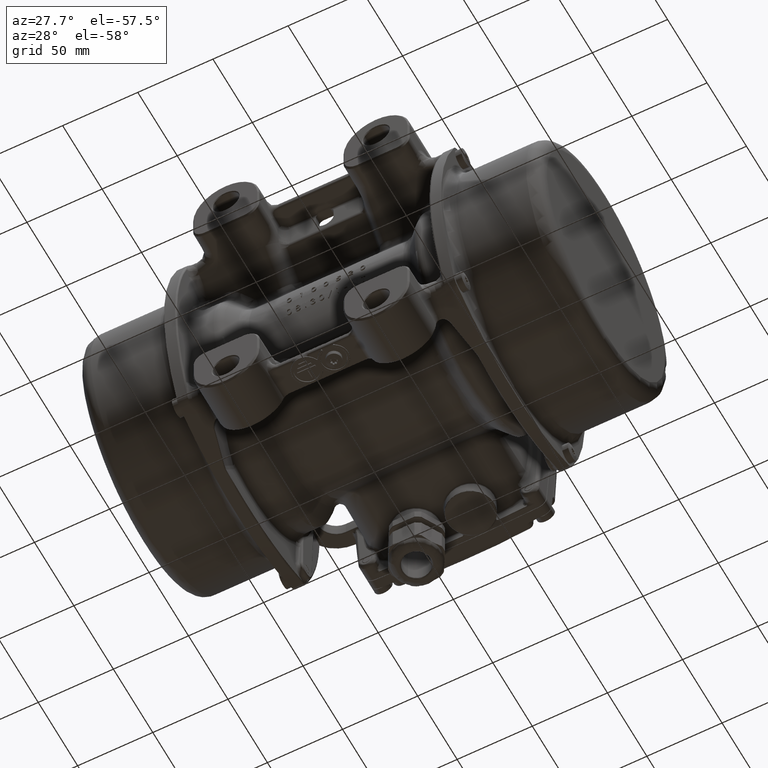
[diagram: clean part render]
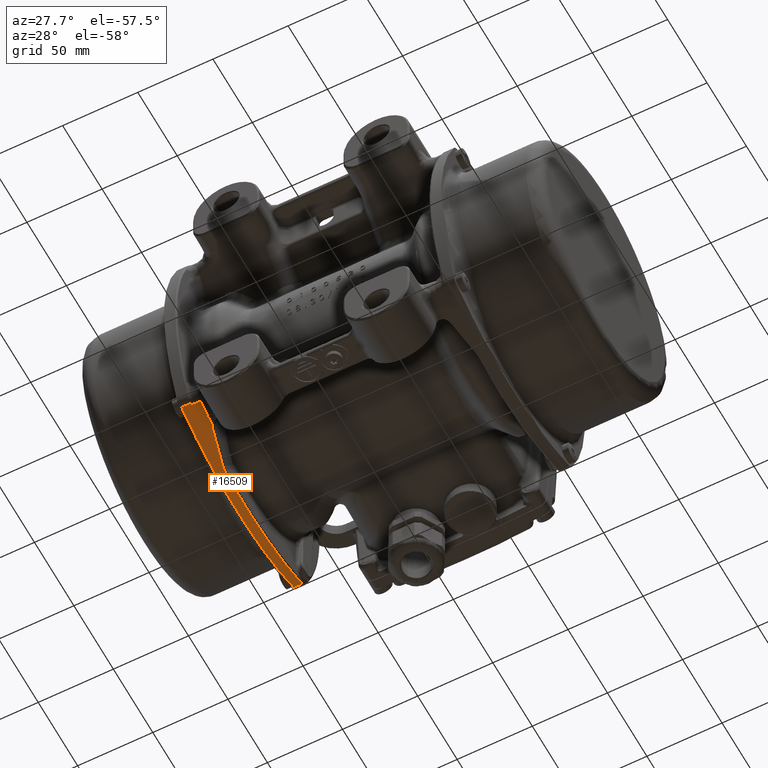
[diagram: same view with one face highlighted and labeled with its STEP entity id]
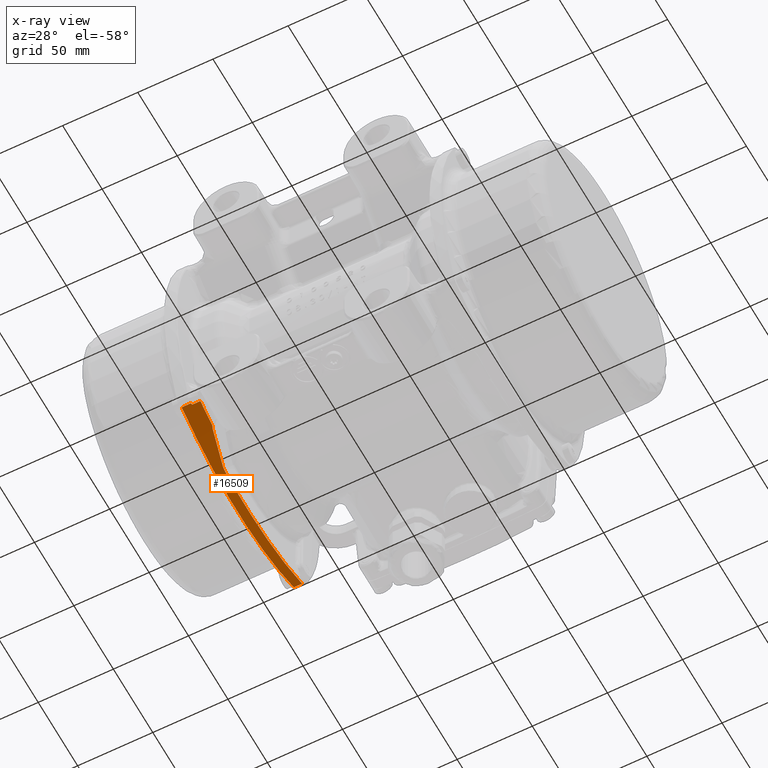
[diagram: x-ray of the same camera — body ghosted, the highlighted face saturated]
A machine part, auxiliary view. The second image highlights one B-rep face of the part: STEP entity #16509.
The next image is the same camera in x-ray: the body ghosted, the highlighted face saturated — about 0% of this face is hidden behind the body in this view.
In plain terms, the highlighted cylindrical surface (partial cylindrical patch) has radius 163 mm, axis along (1, 0, 0).
Its self-contained STEP definition (entity closure, byte-faithful):
#1179 = CARTESIAN_POINT ( 'NONE',  ( -84.95622365670847400, 1.664559258779139600, -91.05815852646271900 ) ) ;
#1405 = DIRECTION ( 'NONE',  ( -1.000000000000000000, 0.0000000000000000000, 0.0000000000000000000 ) ) ;
#1544 = EDGE_CURVE ( 'NONE', #92288, #127530, #82545, .T. ) ;
#5457 = EDGE_CURVE ( 'NONE', #92288, #8574, #68209, .T. ) ;
#6122 = AXIS2_PLACEMENT_3D ( 'NONE', #84977, #139293, #17873 ) ;
#7042 = VERTEX_POINT ( 'NONE', #85065 ) ;
#8574 = VERTEX_POINT ( 'NONE', #83691 ) ;
#10276 = CARTESIAN_POINT ( 'NONE',  ( -85.05358858076387200, 31.19137921331264000, -88.22498620659658300 ) ) ;
#11708 = CARTESIAN_POINT ( 'NONE',  ( -84.97921079013436000, 14.33698579958123900, -90.39429363348564600 ) ) ;
#12398 = CARTESIAN_POINT ( 'NONE',  ( -81.48506677218058800, -45.65122559838616200, -84.68089224057997900 ) ) ;
#13397 = EDGE_CURVE ( 'NONE', #7042, #128680, #109276, .T. ) ;
#13398 = CARTESIAN_POINT ( 'NONE',  ( -91.00000000000000000, 1.792729326835795000E-023, 71.98787847279119500 ) ) ;
#15346 = CARTESIAN_POINT ( 'NONE',  ( -85.03981301421490000, -27.79474097266059800, -88.62486191309069700 ) ) ;
#16509 = ADVANCED_FACE ( 'NONE', ( #33911 ), #20033, .T. ) ;
#17873 = DIRECTION ( 'NONE',  ( 0.0000000000000000000, 0.0000000000000000000, -1.000000000000000000 ) ) ;
#17956 = CARTESIAN_POINT ( 'NONE',  ( -78.89318181003810100, -55.14786342736459100, -81.39958242084489400 ) ) ;
#19954 = CARTESIAN_POINT ( 'NONE',  ( -84.51364399271601300, -70.04470885504979100, -75.19479293050719100 ) ) ;
#20012 = CARTESIAN_POINT ( 'NONE',  ( -84.51364399271601300, -70.04470885504979100, -75.19479293050719100 ) ) ;
#20033 = CYLINDRICAL_SURFACE ( 'NONE', #6122, 163.0000000000000000 ) ;
#21427 = CARTESIAN_POINT ( 'NONE',  ( -84.91226995062560000, -71.01404842834180900, -74.72955377647200200 ) ) ;
#21679 = CARTESIAN_POINT ( 'NONE',  ( -85.48723200359769700, 71.01404973767999700, -74.72955314272719800 ) ) ;
#22376 = ORIENTED_EDGE ( 'NONE', *, *, #35187, .T. ) ;
#23339 = CARTESIAN_POINT ( 'NONE',  ( -83.16227077923406300, -38.15653777660978100, -86.67281842589184700 ) ) ;
#25711 = B_SPLINE_CURVE_WITH_KNOTS ( 'NONE', 3,
 ( #69383, #136033, #80311, #26093 ),
 .UNSPECIFIED., .F., .F.,
 ( 4, 4 ),
 ( 0.0000000000000000000, 0.002444839378856242700 ),
 .UNSPECIFIED. ) ;
#26093 = CARTESIAN_POINT ( 'NONE',  ( -78.89318181003810100, -55.14786342736459100, -81.39958242084489400 ) ) ;
#26136 = CARTESIAN_POINT ( 'NONE',  ( -84.76522260799039500, -30.53898323122515300, -88.12573900930479500 ) ) ;
#28691 = LINE ( 'NONE', #116977, #47356 ) ;
#30372 = EDGE_CURVE ( 'NONE', #105200, #126795, #99846, .T. ) ;
#31036 = CARTESIAN_POINT ( 'NONE',  ( -79.00000000000000000, -61.37645135133379900, -79.01520500406159900 ) ) ;
#33823 = ORIENTED_EDGE ( 'NONE', *, *, #13397, .T. ) ;
#33889 = CARTESIAN_POINT ( 'NONE',  ( -84.76522260799039500, -30.53898323122515300, -88.12573900930479500 ) ) ;
#33911 = FACE_OUTER_BOUND ( 'NONE', #63044, .T. ) ;
#34545 = EDGE_CURVE ( 'NONE', #126795, #54433, #119964, .T. ) ;
#35187 = EDGE_CURVE ( 'NONE', #54433, #133224, #25711, .T. ) ;
#35426 = CARTESIAN_POINT ( 'NONE',  ( -84.95540459665196000, -29.63519957023809300, -88.29812056248921700 ) ) ;
#40563 = AXIS2_PLACEMENT_3D ( 'NONE', #13398, #89071, #112433 ) ;
#45646 = ORIENTED_EDGE ( 'NONE', *, *, #34545, .T. ) ;
#47356 = VECTOR ( 'NONE', #138794, 1000.000000000000000 ) ;
#47833 = VECTOR ( 'NONE', #60059, 1000.000000000000000 ) ;
#52330 = CARTESIAN_POINT ( 'NONE',  ( -91.00000000000000000, -71.01404842834180900, -74.72955377647200200 ) ) ;
#54433 = VERTEX_POINT ( 'NONE', #121991 ) ;
#54488 = CARTESIAN_POINT ( 'NONE',  ( -85.11556374661380200, 39.41058288379145600, -86.39900207664236100 ) ) ;
#54959 = CARTESIAN_POINT ( 'NONE',  ( -84.99399469158468900, 18.56685279070377700, -89.96517323423360300 ) ) ;
#55903 = CARTESIAN_POINT ( 'NONE',  ( -84.95961069827305300, 5.885286579069793700, -90.96084151704330600 ) ) ;
#56582 = CARTESIAN_POINT ( 'NONE',  ( -79.00000000000000000, 1.792729326835795000E-023, 71.98787847279119500 ) ) ;
#56623 = ORIENTED_EDGE ( 'NONE', *, *, #5457, .F. ) ;
#56758 = CARTESIAN_POINT ( 'NONE',  ( -85.04525813113102100, -28.72031924801059000, -88.46468652257394200 ) ) ;
#60059 = DIRECTION ( 'NONE',  ( 1.000000000000000000, 0.0000000000000000000, 0.0000000000000000000 ) ) ;
#60831 = CARTESIAN_POINT ( 'NONE',  ( -101.5000000000000000, -70.04470885504979100, -75.19479293050719100 ) ) ;
#63044 = EDGE_LOOP ( 'NONE', ( #56623, #78283, #129853, #89924, #80923, #45646, #22376, #127449, #63344, #33823, #80032 ) ) ;
#63344 = ORIENTED_EDGE ( 'NONE', *, *, #72878, .T. ) ;
#65038 = CARTESIAN_POINT ( 'NONE',  ( -85.03981301421490000, -27.79474097266059800, -88.62486191309069700 ) ) ;
#65236 = CARTESIAN_POINT ( 'NONE',  ( -84.78570494465051900, -70.68934162004858000, -74.88671809331999900 ) ) ;
#65966 = CARTESIAN_POINT ( 'NONE',  ( -85.00282291425854500, 20.68424360165078500, -89.70833693051641000 ) ) ;
#68209 = LINE ( 'NONE', #125389, #47833 ) ;
#68842 = CARTESIAN_POINT ( 'NONE',  ( -85.48723200359769700, 71.01404973767999700, -74.72955314272719800 ) ) ;
#69383 = CARTESIAN_POINT ( 'NONE',  ( -79.74213417574100000, -52.98495852258109600, -82.16008346754840400 ) ) ;
#69838 = VERTEX_POINT ( 'NONE', #31036 ) ;
#72878 = EDGE_CURVE ( 'NONE', #69838, #7042, #95539, .T. ) ;
#74135 = CARTESIAN_POINT ( 'NONE',  ( -78.96068239280941700, -57.23940463725277500, -80.64760420617450600 ) ) ;
#75480 = CARTESIAN_POINT ( 'NONE',  ( -85.37370443854364100, 63.34494570487331100, -78.44154652505665100 ) ) ;
#78056 = CARTESIAN_POINT ( 'NONE',  ( -79.74213417574100000, -52.98495852258109600, -82.16008346754840400 ) ) ;
#78283 = ORIENTED_EDGE ( 'NONE', *, *, #1544, .T. ) ;
#78840 = EDGE_CURVE ( 'NONE', #127530, #110468, #28691, .T. ) ;
#80032 = ORIENTED_EDGE ( 'NONE', *, *, #123176, .T. ) ;
#80311 = CARTESIAN_POINT ( 'NONE',  ( -79.27780754179765700, -54.46409556670649000, -81.64541957321645800 ) ) ;
#80811 = DIRECTION ( 'NONE',  ( -1.000000000000000000, -0.0000000000000000000, -0.0000000000000000000 ) ) ;
#80923 = ORIENTED_EDGE ( 'NONE', *, *, #30372, .T. ) ;
#82545 = CIRCLE ( 'NONE', #40563, 163.0000000000000000 ) ;
#83621 = CARTESIAN_POINT ( 'NONE',  ( -79.00000000000000000, -61.37645135133379900, -79.01520500406159900 ) ) ;
#83691 = CARTESIAN_POINT ( 'NONE',  ( -84.91226995062560000, -71.01404842834180900, -74.72955377647200200 ) ) ;
#84528 = EDGE_CURVE ( 'NONE', #133224, #69838, #123253, .T. ) ;
#84977 = CARTESIAN_POINT ( 'NONE',  ( -101.5000000000000000, 1.792729326835795000E-023, 71.98787847279119500 ) ) ;
#85065 = CARTESIAN_POINT ( 'NONE',  ( -79.00000000000000000, -70.04470885504969100, -75.19479293050730500 ) ) ;
#86878 = CARTESIAN_POINT ( 'NONE',  ( -84.97324240460692100, 12.22320642598969300, -90.56695446298613200 ) ) ;
#88239 = EDGE_CURVE ( 'NONE', #110468, #105200, #109173, .T. ) ;
#89071 = DIRECTION ( 'NONE',  ( 1.000000000000000000, -0.0000000000000000000, -0.0000000000000000000 ) ) ;
#89924 = ORIENTED_EDGE ( 'NONE', *, *, #88239, .T. ) ;
#92288 = VERTEX_POINT ( 'NONE', #52330 ) ;
#93910 = AXIS2_PLACEMENT_3D ( 'NONE', #56582, #1405, #132359 ) ;
#95539 = CIRCLE ( 'NONE', #93910, 163.0000000000000000 ) ;
#97339 = VECTOR ( 'NONE', #80811, 1000.000000000000000 ) ;
#99239 = CARTESIAN_POINT ( 'NONE',  ( -84.96309493681141600, -10.98412571340352700, -90.86012654128451500 ) ) ;
#99846 = B_SPLINE_CURVE_WITH_KNOTS ( 'NONE', 3,
 ( #100090, #56758, #35426, #123052 ),
 .UNSPECIFIED., .F., .F.,
 ( 4, 4 ),
 ( 0.0000000000000000000, 0.002802746713130831800 ),
 .UNSPECIFIED. ) ;
#100090 = CARTESIAN_POINT ( 'NONE',  ( -85.03981301421490000, -27.79474097266059800, -88.62486191309069700 ) ) ;
#101799 = B_SPLINE_CURVE_WITH_KNOTS ( 'NONE', 3,
 ( #20012, #141389, #65236, #21427 ),
 .UNSPECIFIED., .F., .F.,
 ( 4, 4 ),
 ( -1.721656244367709100E-005, 0.001129505523171453900 ),
 .UNSPECIFIED. ) ;
#102309 = CARTESIAN_POINT ( 'NONE',  ( -91.00000000000000000, 71.01404973767999700, -74.72955314272719800 ) ) ;
#105200 = VERTEX_POINT ( 'NONE', #15346 ) ;
#109173 = B_SPLINE_CURVE_WITH_KNOTS ( 'NONE', 3,
 ( #21679, #75480, #109787, #54488, #10276, #65966, #54959, #11708, #86878, #55903, #1179, #99239, #110261, #65038 ),
 .UNSPECIFIED., .F., .F.,
 ( 4, 2, 2, 2, 2, 2, 4 ),
 ( 0.0000000000000000000, 0.02520616277970655400, 0.05041232555941310700, 0.05671386625433974500, 0.06301540694926639800, 0.07561848833911970200, 0.1008246511188263000 ),
 .UNSPECIFIED. ) ;
#109276 = LINE ( 'NONE', #60831, #97339 ) ;
#109787 = CARTESIAN_POINT ( 'NONE',  ( -85.27564181875418100, 55.48735377343631800, -81.50724048752705600 ) ) ;
#110261 = CARTESIAN_POINT ( 'NONE',  ( -84.99041947427090800, -19.39867010478594300, -90.07783889611211200 ) ) ;
#110468 = VERTEX_POINT ( 'NONE', #68842 ) ;
#112433 = DIRECTION ( 'NONE',  ( 0.0000000000000000000, 1.776356839400250500E-015, 1.000000000000000000 ) ) ;
#116977 = CARTESIAN_POINT ( 'NONE',  ( -101.5000000000000000, 71.01404973767999700, -74.72955314272719800 ) ) ;
#119964 =( BOUNDED_CURVE ( )  B_SPLINE_CURVE ( 3, ( #33889, #23339, #12398, #78056 ),
 .UNSPECIFIED., .F., .T. ) 
 B_SPLINE_CURVE_WITH_KNOTS ( ( 4, 4 ),
 ( 4.111211970336015000, 4.253818792758105300 ),
 .UNSPECIFIED. ) 
 CURVE ( )  GEOMETRIC_REPRESENTATION_ITEM ( )  RATIONAL_B_SPLINE_CURVE ( ( 1.000000000000000000, 0.9983059924184980400, 0.9983059924184980400, 1.000000000000000000 ) ) 
 REPRESENTATION_ITEM ( '' )  );
#121986 = CARTESIAN_POINT ( 'NONE',  ( -78.89318181003810100, -55.14786342736459100, -81.39958242084489400 ) ) ;
#121991 = CARTESIAN_POINT ( 'NONE',  ( -79.74213417574100000, -52.98495852258109600, -82.16008346754840400 ) ) ;
#123052 = CARTESIAN_POINT ( 'NONE',  ( -84.76522260799039500, -30.53898323122515300, -88.12573900930479500 ) ) ;
#123176 = EDGE_CURVE ( 'NONE', #128680, #8574, #101799, .T. ) ;
#123253 = B_SPLINE_CURVE_WITH_KNOTS ( 'NONE', 3,
 ( #17956, #74135, #127066, #83621 ),
 .UNSPECIFIED., .F., .F.,
 ( 4, 4 ),
 ( 0.002261100763835005100, 0.008931097727752499600 ),
 .UNSPECIFIED. ) ;
#125389 = CARTESIAN_POINT ( 'NONE',  ( -101.5000000000000000, -71.01404842834180900, -74.72955377647200200 ) ) ;
#126795 = VERTEX_POINT ( 'NONE', #26136 ) ;
#127066 = CARTESIAN_POINT ( 'NONE',  ( -79.00000000000000000, -59.31554342691109100, -79.85287806377961300 ) ) ;
#127449 = ORIENTED_EDGE ( 'NONE', *, *, #84528, .T. ) ;
#127530 = VERTEX_POINT ( 'NONE', #102309 ) ;
#128680 = VERTEX_POINT ( 'NONE', #19954 ) ;
#129853 = ORIENTED_EDGE ( 'NONE', *, *, #78840, .T. ) ;
#132359 = DIRECTION ( 'NONE',  ( 0.0000000000000000000, 0.0000000000000000000, 1.000000000000000000 ) ) ;
#133224 = VERTEX_POINT ( 'NONE', #121986 ) ;
#136033 = CARTESIAN_POINT ( 'NONE',  ( -79.56182066591874500, -53.74366320591876400, -81.89929548390256300 ) ) ;
#138794 = DIRECTION ( 'NONE',  ( 1.000000000000000000, 0.0000000000000000000, 0.0000000000000000000 ) ) ;
#139293 = DIRECTION ( 'NONE',  ( 1.000000000000000000, 0.0000000000000000000, 0.0000000000000000000 ) ) ;
#141389 = CARTESIAN_POINT ( 'NONE',  ( -84.65015640425546900, -70.36709547304624800, -75.04136809739995300 ) ) ;